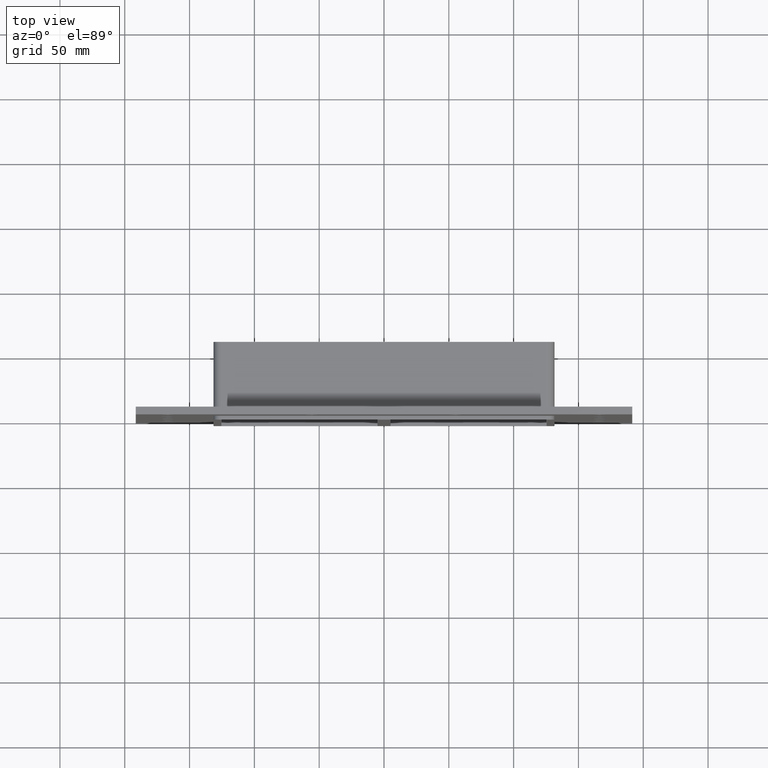
[diagram: clean part render]
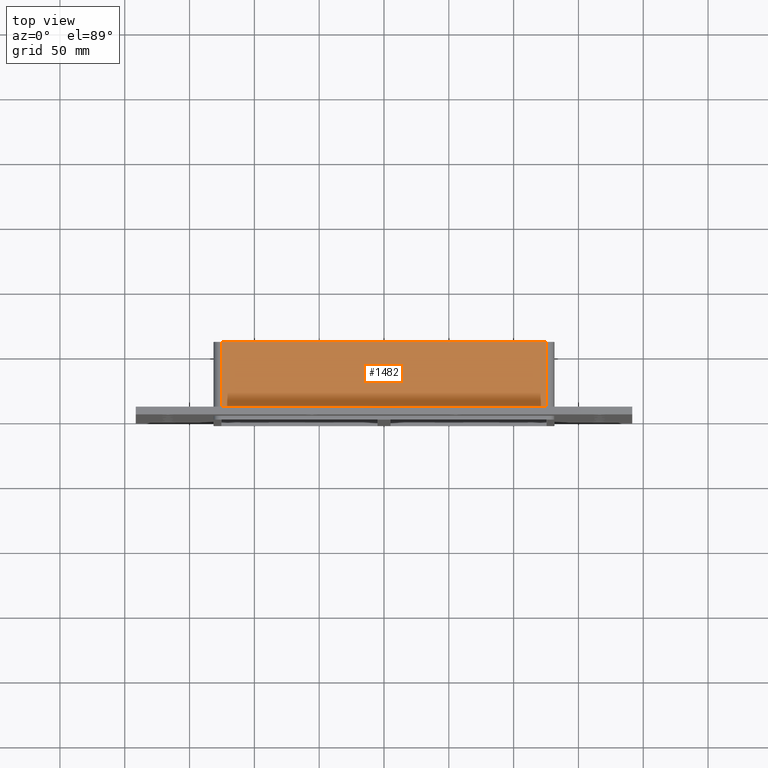
[diagram: same view with one face highlighted and labeled with its STEP entity id]
A machine part, top view. The second image highlights one B-rep face of the part: STEP entity #1482.
In plain terms, the highlighted planar face has unit normal (0, 0, 1).
Its self-contained STEP definition (entity closure, byte-faithful):
#781=CARTESIAN_POINT('',(125.5,6.000000000000001,145.0));
#782=VERTEX_POINT('',#781);
#790=CARTESIAN_POINT('',(-125.5,6.000000000000001,145.0));
#791=VERTEX_POINT('',#790);
#792=CARTESIAN_POINT('',(-125.5,6.000000000000001,145.0));
#793=DIRECTION('',(1.0,0.0,0.0));
#794=VECTOR('',#793,251.0);
#795=LINE('',#792,#794);
#796=EDGE_CURVE('',#791,#782,#795,.T.);
#1104=CARTESIAN_POINT('',(125.5,57.0,145.0));
#1105=VERTEX_POINT('',#1104);
#1113=CARTESIAN_POINT('',(125.5,57.0,145.0));
#1114=DIRECTION('',(0.0,-1.0,0.0));
#1115=VECTOR('',#1114,51.0);
#1116=LINE('',#1113,#1115);
#1117=EDGE_CURVE('',#1105,#782,#1116,.T.);
#1447=CARTESIAN_POINT('',(-125.5,57.0,145.0));
#1448=VERTEX_POINT('',#1447);
#1449=CARTESIAN_POINT('',(-125.5,6.000000000000001,145.0));
#1450=DIRECTION('',(0.0,1.0,0.0));
#1451=VECTOR('',#1450,51.0);
#1452=LINE('',#1449,#1451);
#1453=EDGE_CURVE('',#791,#1448,#1452,.T.);
#1466=CARTESIAN_POINT('',(-131.50000000000003,0.0,145.0));
#1467=DIRECTION('',(0.0,0.0,1.0));
#1468=DIRECTION('',(1.0,0.0,0.0));
#1469=AXIS2_PLACEMENT_3D('',#1466,#1467,#1468);
#1470=PLANE('',#1469);
#1471=ORIENTED_EDGE('',*,*,#796,.T.);
#1472=ORIENTED_EDGE('',*,*,#1117,.F.);
#1473=CARTESIAN_POINT('',(-125.50000000000001,57.0,145.0));
#1474=DIRECTION('',(1.0,0.0,0.0));
#1475=VECTOR('',#1474,251.0);
#1476=LINE('',#1473,#1475);
#1477=EDGE_CURVE('',#1448,#1105,#1476,.T.);
#1478=ORIENTED_EDGE('',*,*,#1477,.F.);
#1479=ORIENTED_EDGE('',*,*,#1453,.F.);
#1480=EDGE_LOOP('',(#1471,#1472,#1478,#1479));
#1481=FACE_OUTER_BOUND('',#1480,.T.);
#1482=ADVANCED_FACE('',(#1481),#1470,.T.);